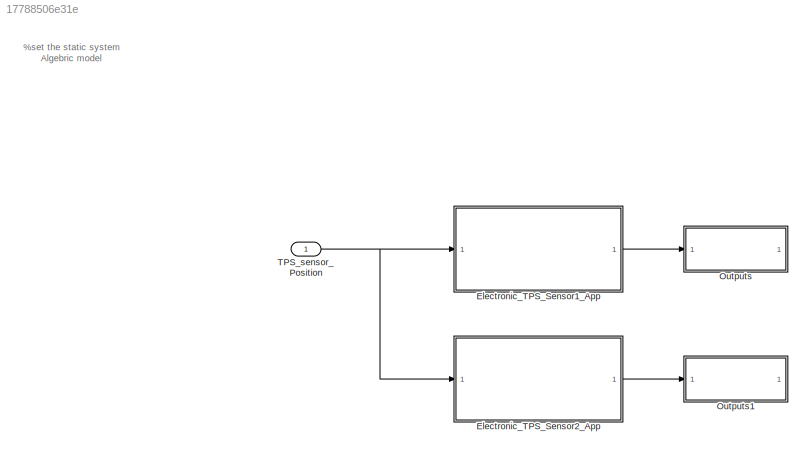
MODEL slx_17788506e31e
KIND model
CONFIG AbsTol = auto
CONFIG EnableMultiTasking = off
CONFIG FixedStep = auto
CONFIG MaxStep = auto
CONFIG MinStep = auto
CONFIG RelTol = 1e-3
CONFIG SampleTimeConstraint = Unconstrained
CONFIG SolverName = VariableStepDiscrete
CONFIG StartTime = 0.0
CONFIG StopTime = 10.0
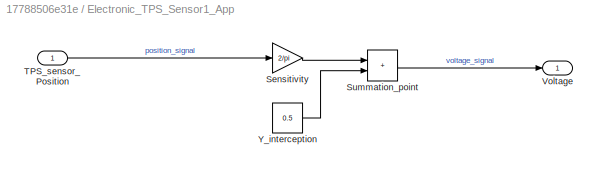
BLOCK [SubSystem] Electronic_TPS_Sensor1_App
BLOCK [Gain] Electronic_TPS_Sensor1_App/Sensitivity
  Gain = 2/pi
BLOCK [Sum] Electronic_TPS_Sensor1_App/Summation_point
  IconShape = rectangular
BLOCK [Inport] Electronic_TPS_Sensor1_App/TPS_sensor_Position
BLOCK [Outport] Electronic_TPS_Sensor1_App/Voltage
BLOCK [Constant] Electronic_TPS_Sensor1_App/Y_interception
  Value = 0.5
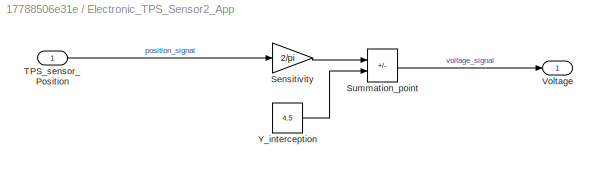
BLOCK [SubSystem] Electronic_TPS_Sensor2_App
BLOCK [Gain] Electronic_TPS_Sensor2_App/Sensitivity
  Gain = 2/pi
BLOCK [Sum] Electronic_TPS_Sensor2_App/Summation_point
  IconShape = rectangular
  Inputs = -+
BLOCK [Inport] Electronic_TPS_Sensor2_App/TPS_sensor_Position
BLOCK [Outport] Electronic_TPS_Sensor2_App/Voltage
BLOCK [Constant] Electronic_TPS_Sensor2_App/Y_interception
  Value = 4.5
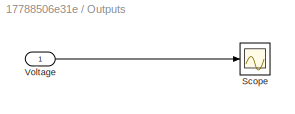
BLOCK [SubSystem] Outputs
BLOCK [Scope] Outputs/Scope
  Floating = off
  NumInputPorts = 1
  ScopeSpecificationString = Simulink.scopes.TimeScopeBlockCfg('CurrentConfiguration', extmgr.ConfigurationSet(extmgr.Configuration('Core','General UI',true),extmgr.Configuration('Core','Source UI',true),extmgr.Configuration('Sources','WiredSimulink',true),extmgr.Configuration('Visuals','Time Domain',true,'SerializedDisplays',{struct('MinYLimReal','0.4','MaxYLimReal','0.6','YLabelReal','','MinYLimMag','0.4','MaxYLimMag','0.6'...<+1523ch>
BLOCK [Inport] Outputs/Voltage
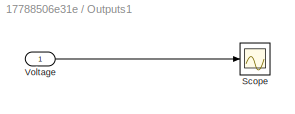
BLOCK [SubSystem] Outputs1
BLOCK [Scope] Outputs1/Scope
  Floating = off
  NumInputPorts = 1
  ScopeSpecificationString = Simulink.scopes.TimeScopeBlockCfg('CurrentConfiguration', extmgr.ConfigurationSet(extmgr.Configuration('Core','General UI',true),extmgr.Configuration('Core','Source UI',true),extmgr.Configuration('Sources','WiredSimulink',true),extmgr.Configuration('Visuals','Time Domain',true,'SerializedDisplays',{struct('MinYLimReal','3.5','MaxYLimReal','5.5','YLabelReal','','MinYLimMag','3.5','MaxYLimMag','5.5'...<+1523ch>
BLOCK [Inport] Outputs1/Voltage
BLOCK [Inport] TPS_sensor_Position
ANNOTATION (root): %set the static system Algebric model
LINE Electronic_TPS_Sensor1_App/Sensitivity:1 -> Electronic_TPS_Sensor1_App/Summation_point:1
LINE Electronic_TPS_Sensor1_App/Summation_point:1 -> Electronic_TPS_Sensor1_App/Voltage:1
LINE Electronic_TPS_Sensor1_App/TPS_sensor_Position:1 -> Electronic_TPS_Sensor1_App/Sensitivity:1
LINE Electronic_TPS_Sensor1_App/Y_interception:1 -> Electronic_TPS_Sensor1_App/Summation_point:2
LINE Electronic_TPS_Sensor1_App:1 -> Outputs:1
LINE Electronic_TPS_Sensor2_App/Sensitivity:1 -> Electronic_TPS_Sensor2_App/Summation_point:1
LINE Electronic_TPS_Sensor2_App/Summation_point:1 -> Electronic_TPS_Sensor2_App/Voltage:1
LINE Electronic_TPS_Sensor2_App/TPS_sensor_Position:1 -> Electronic_TPS_Sensor2_App/Sensitivity:1
LINE Electronic_TPS_Sensor2_App/Y_interception:1 -> Electronic_TPS_Sensor2_App/Summation_point:2
LINE Electronic_TPS_Sensor2_App:1 -> Outputs1:1
LINE Outputs/Voltage:1 -> Outputs/Scope:1
LINE Outputs1/Voltage:1 -> Outputs1/Scope:1
NET TPS_sensor_Position:1 -> Electronic_TPS_Sensor1_App:1, Electronic_TPS_Sensor2_App:1
note: NET lines group one-source signal fan-out (src -> all destinations, sorted); 1:1 wires keep LINE
